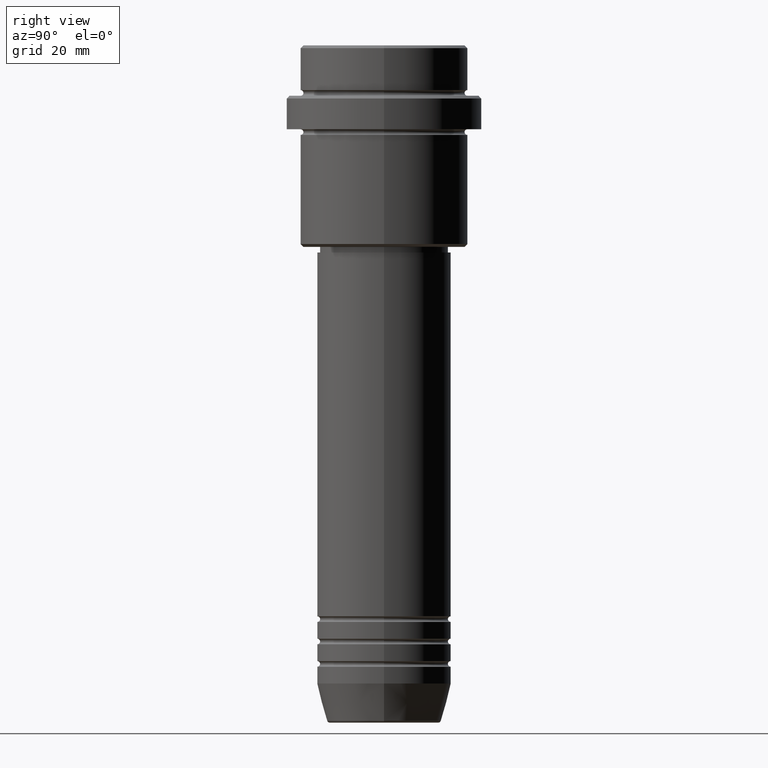
[diagram: clean part render]
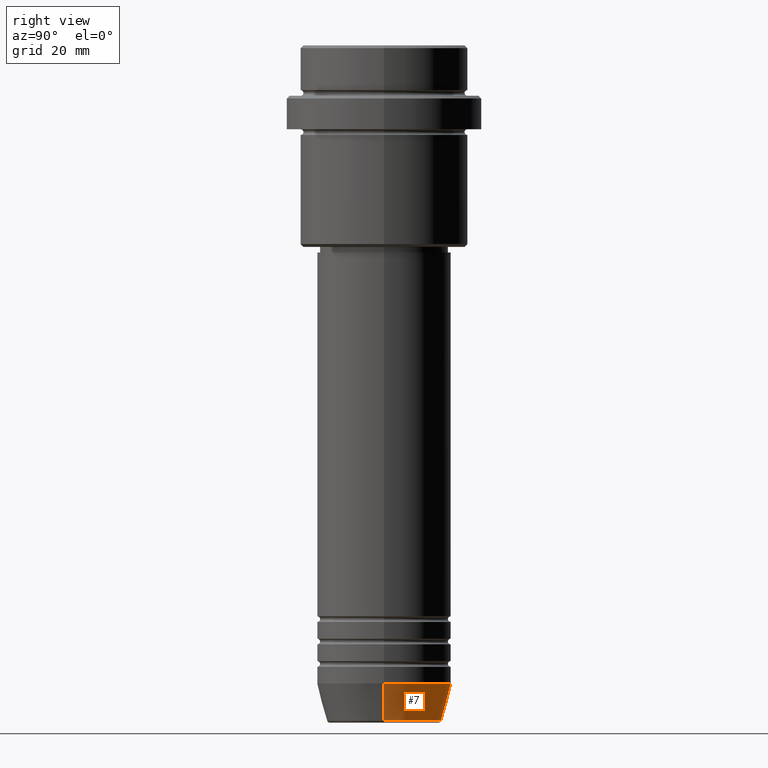
[diagram: same view with one face highlighted and labeled with its STEP entity id]
A machine part, right view. The second image highlights one B-rep face of the part: STEP entity #7.
In plain terms, the highlighted conical surface has half-angle 15 deg.
Its self-contained STEP definition (entity closure, byte-faithful):
#5 = CARTESIAN_POINT ( 'NONE',  ( 12.00000000000000000, 0.000000000000000000, -114.0000000000000000 ) ) ;
#7 = ADVANCED_FACE ( 'NONE', ( #197 ), #751, .T. ) ;
#39 = AXIS2_PLACEMENT_3D ( 'NONE', #946, #1308, #239 ) ;
#56 = VERTEX_POINT ( 'NONE', #424 ) ;
#90 = EDGE_CURVE ( 'NONE', #440, #125, #271, .T. ) ;
#125 = VERTEX_POINT ( 'NONE', #610 ) ;
#197 = FACE_OUTER_BOUND ( 'NONE', #666, .T. ) ;
#239 = DIRECTION ( 'NONE',  ( 1.000000000000000000, 0.000000000000000000, 0.000000000000000000 ) ) ;
#269 = CIRCLE ( 'NONE', #1048, 12.00000000000000000 ) ;
#271 = CIRCLE ( 'NONE', #818, 10.22365507213718949 ) ;
#293 = LINE ( 'NONE', #850, #929 ) ;
#299 = CARTESIAN_POINT ( 'NONE',  ( 10.22365507213718949, 0.000000000000000000, -120.6294095225512564 ) ) ;
#415 = DIRECTION ( 'NONE',  ( -0.000000000000000000, -0.000000000000000000, 1.000000000000000000 ) ) ;
#424 = CARTESIAN_POINT ( 'NONE',  ( 12.00000000000000000, 0.000000000000000000, -114.0000000000000000 ) ) ;
#440 = VERTEX_POINT ( 'NONE', #299 ) ;
#481 = ORIENTED_EDGE ( 'NONE', *, *, #1144, .F. ) ;
#491 = DIRECTION ( 'NONE',  ( -0.000000000000000000, -0.000000000000000000, 1.000000000000000000 ) ) ;
#519 = CARTESIAN_POINT ( 'NONE',  ( -12.00000000000000000, 1.469576158976823947E-15, -114.0000000000000000 ) ) ;
#542 = DIRECTION ( 'NONE',  ( 0.2588190451025213501, 0.000000000000000000, 0.9659258262890680902 ) ) ;
#580 = ORIENTED_EDGE ( 'NONE', *, *, #90, .T. ) ;
#607 = ORIENTED_EDGE ( 'NONE', *, *, #1058, .F. ) ;
#610 = CARTESIAN_POINT ( 'NONE',  ( -10.22365507213718949, 1.360806402472382744E-15, -120.6294095225512564 ) ) ;
#650 = DIRECTION ( 'NONE',  ( -0.2588190451025213501, 3.169619151431772337E-17, 0.9659258262890680902 ) ) ;
#666 = EDGE_LOOP ( 'NONE', ( #580, #780, #481, #607 ) ) ;
#751 = CONICAL_SURFACE ( 'NONE', #39, 12.00000000000000000, 0.2617993877991500740 ) ;
#780 = ORIENTED_EDGE ( 'NONE', *, *, #879, .T. ) ;
#813 = DIRECTION ( 'NONE',  ( 1.000000000000000000, 0.000000000000000000, 0.000000000000000000 ) ) ;
#817 = VECTOR ( 'NONE', #542, 1000.000000000000000 ) ;
#818 = AXIS2_PLACEMENT_3D ( 'NONE', #941, #415, #851 ) ;
#850 = CARTESIAN_POINT ( 'NONE',  ( -12.00000000000000000, 1.469576158976823947E-15, -114.0000000000000000 ) ) ;
#851 = DIRECTION ( 'NONE',  ( 1.000000000000000000, 0.000000000000000000, 0.000000000000000000 ) ) ;
#879 = EDGE_CURVE ( 'NONE', #125, #1220, #293, .T. ) ;
#929 = VECTOR ( 'NONE', #650, 1000.000000000000000 ) ;
#941 = CARTESIAN_POINT ( 'NONE',  ( 0.000000000000000000, 0.000000000000000000, -120.6294095225512564 ) ) ;
#946 = CARTESIAN_POINT ( 'NONE',  ( 0.000000000000000000, 0.000000000000000000, -114.0000000000000000 ) ) ;
#1048 = AXIS2_PLACEMENT_3D ( 'NONE', #1247, #491, #813 ) ;
#1058 = EDGE_CURVE ( 'NONE', #440, #56, #1109, .T. ) ;
#1109 = LINE ( 'NONE', #5, #817 ) ;
#1144 = EDGE_CURVE ( 'NONE', #56, #1220, #269, .T. ) ;
#1220 = VERTEX_POINT ( 'NONE', #519 ) ;
#1247 = CARTESIAN_POINT ( 'NONE',  ( 0.000000000000000000, 0.000000000000000000, -114.0000000000000000 ) ) ;
#1308 = DIRECTION ( 'NONE',  ( -0.000000000000000000, -0.000000000000000000, 1.000000000000000000 ) ) ;